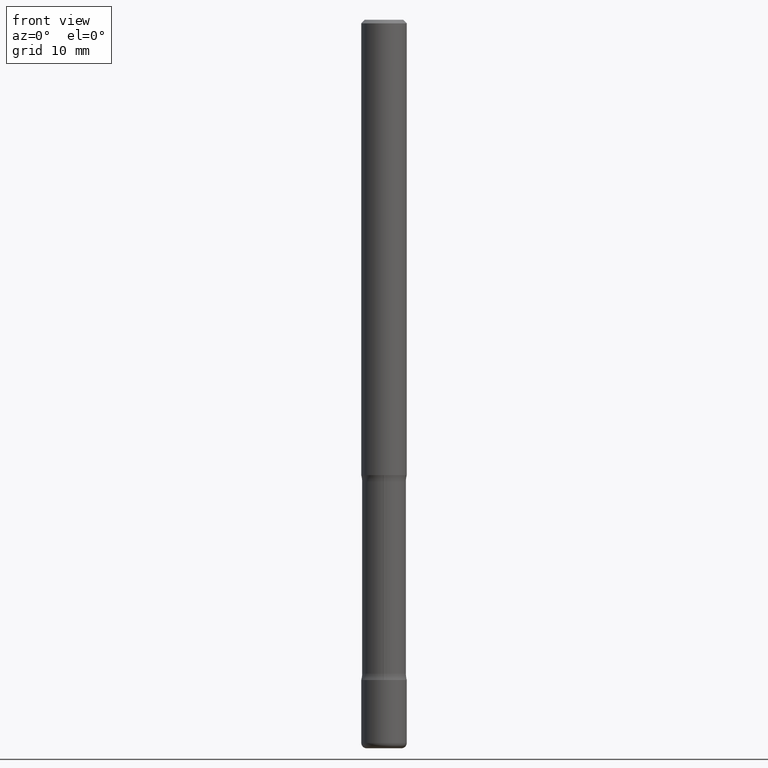
[diagram: clean part render]
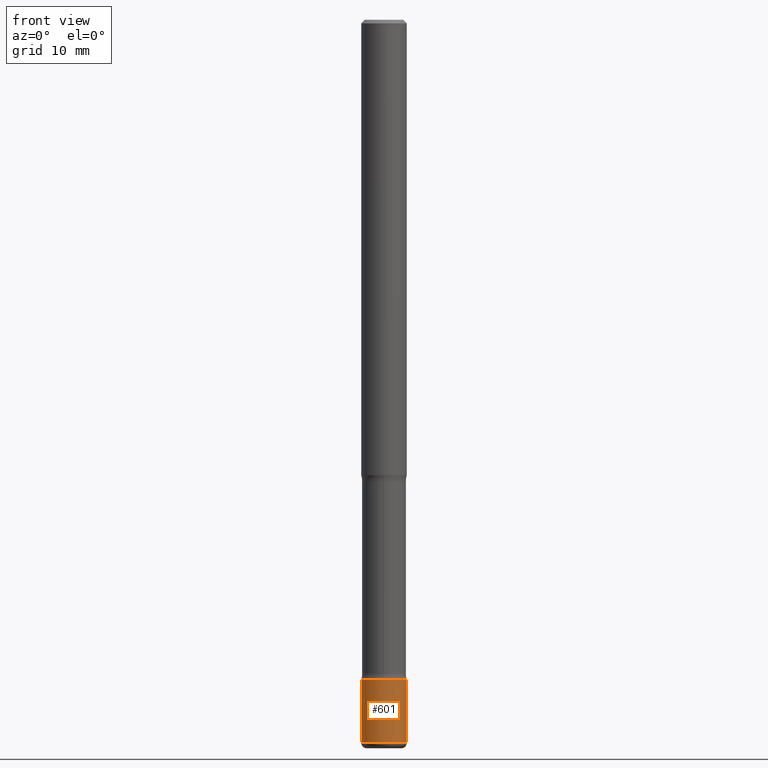
[diagram: same view with one face highlighted and labeled with its STEP entity id]
A machine part, front view. The second image highlights one B-rep face of the part: STEP entity #601.
In plain terms, the highlighted cylindrical surface (edge-blend (fillet) strip) has radius 3.175 mm, axis along (-0, 0, 1).
Its self-contained STEP definition (entity closure, byte-faithful):
#5 = VECTOR ( 'NONE', #593, 39.37007874015748143 ) ;
#7 = AXIS2_PLACEMENT_3D ( 'NONE', #369, #420, #52 ) ;
#17 = CARTESIAN_POINT ( 'NONE',  ( 0.1250000000000000000, -1.473405124991807072E-14, -3.970000000000000195 ) ) ;
#22 = CARTESIAN_POINT ( 'NONE',  ( 0.000000000000000000, 0.000000000000000000, 0.000000000000000000 ) ) ;
#33 = ORIENTED_EDGE ( 'NONE', *, *, #256, .T. ) ;
#51 = ORIENTED_EDGE ( 'NONE', *, *, #666, .F. ) ;
#52 = DIRECTION ( 'NONE',  ( 1.000000000000000000, -6.982962677686262766E-15, 0.000000000000000000 ) ) ;
#56 = CIRCLE ( 'NONE', #108, 0.1250000000000000278 ) ;
#95 = LINE ( 'NONE', #481, #639 ) ;
#108 = AXIS2_PLACEMENT_3D ( 'NONE', #174, #111, #803 ) ;
#111 = DIRECTION ( 'NONE',  ( -2.445468806185136597E-29, 3.491481338843145583E-15, 1.000000000000000000 ) ) ;
#116 = VERTEX_POINT ( 'NONE', #762 ) ;
#122 = EDGE_LOOP ( 'NONE', ( #51, #33, #718, #463 ) ) ;
#152 = FACE_OUTER_BOUND ( 'NONE', #122, .T. ) ;
#165 = DIRECTION ( 'NONE',  ( -2.445468806185136877E-29, 3.491481338843145188E-15, 1.000000000000000000 ) ) ;
#174 = CARTESIAN_POINT ( 'NONE',  ( 9.708511160554992872E-29, -1.386118091520728738E-14, -3.970000000000000195 ) ) ;
#184 = CARTESIAN_POINT ( 'NONE',  ( 0.1250000000000000000, -1.352949018801718435E-14, -3.624999999999999556 ) ) ;
#222 = DIRECTION ( 'NONE',  ( -2.445468806185136597E-29, 3.491481338843145583E-15, 1.000000000000000000 ) ) ;
#256 = EDGE_CURVE ( 'NONE', #116, #633, #56, .T. ) ;
#286 = CYLINDRICAL_SURFACE ( 'NONE', #294, 0.1250000000000000000 ) ;
#290 = LINE ( 'NONE', #764, #5 ) ;
#294 = AXIS2_PLACEMENT_3D ( 'NONE', #22, #222, #413 ) ;
#309 = VERTEX_POINT ( 'NONE', #184 ) ;
#334 = CARTESIAN_POINT ( 'NONE',  ( -0.1250000000000000000, -1.237072196455672054E-14, -3.624999999999999556 ) ) ;
#363 = EDGE_CURVE ( 'NONE', #633, #309, #95, .T. ) ;
#369 = CARTESIAN_POINT ( 'NONE',  ( 8.864824422421120163E-29, -1.265661985330640259E-14, -3.624999999999999556 ) ) ;
#413 = DIRECTION ( 'NONE',  ( 1.000000000000000000, -6.982962677686266711E-15, 4.876176775795935793E-29 ) ) ;
#420 = DIRECTION ( 'NONE',  ( -2.445468806185136597E-29, 3.491481338843145583E-15, 1.000000000000000000 ) ) ;
#463 = ORIENTED_EDGE ( 'NONE', *, *, #746, .F. ) ;
#481 = CARTESIAN_POINT ( 'NONE',  ( 0.1250000000000000000, -8.728703347107833388E-16, 6.095220969744919741E-30 ) ) ;
#593 = DIRECTION ( 'NONE',  ( -2.445468806185136877E-29, 3.491481338843145188E-15, 1.000000000000000000 ) ) ;
#601 = ADVANCED_FACE ( 'NONE', ( #152 ), #286, .T. ) ;
#616 = VERTEX_POINT ( 'NONE', #334 ) ;
#626 = CIRCLE ( 'NONE', #7, 0.1250000000000000000 ) ;
#633 = VERTEX_POINT ( 'NONE', #17 ) ;
#639 = VECTOR ( 'NONE', #165, 39.37007874015748143 ) ;
#666 = EDGE_CURVE ( 'NONE', #116, #616, #290, .T. ) ;
#718 = ORIENTED_EDGE ( 'NONE', *, *, #363, .T. ) ;
#746 = EDGE_CURVE ( 'NONE', #616, #309, #626, .T. ) ;
#762 = CARTESIAN_POINT ( 'NONE',  ( -0.1250000000000000000, -1.297300249550716373E-14, -3.970000000000000195 ) ) ;
#764 = CARTESIAN_POINT ( 'NONE',  ( -0.1250000000000000000, 8.881784197001252323E-16, -6.148668862818632227E-30 ) ) ;
#803 = DIRECTION ( 'NONE',  ( 1.000000000000000000, -6.982962677686261189E-15, 0.000000000000000000 ) ) ;